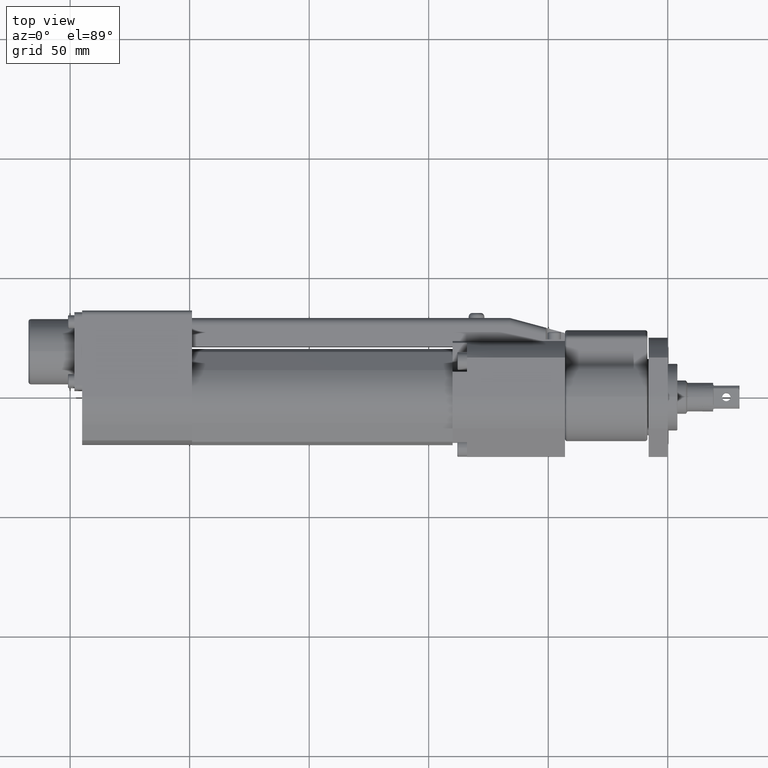
[diagram: clean part render]
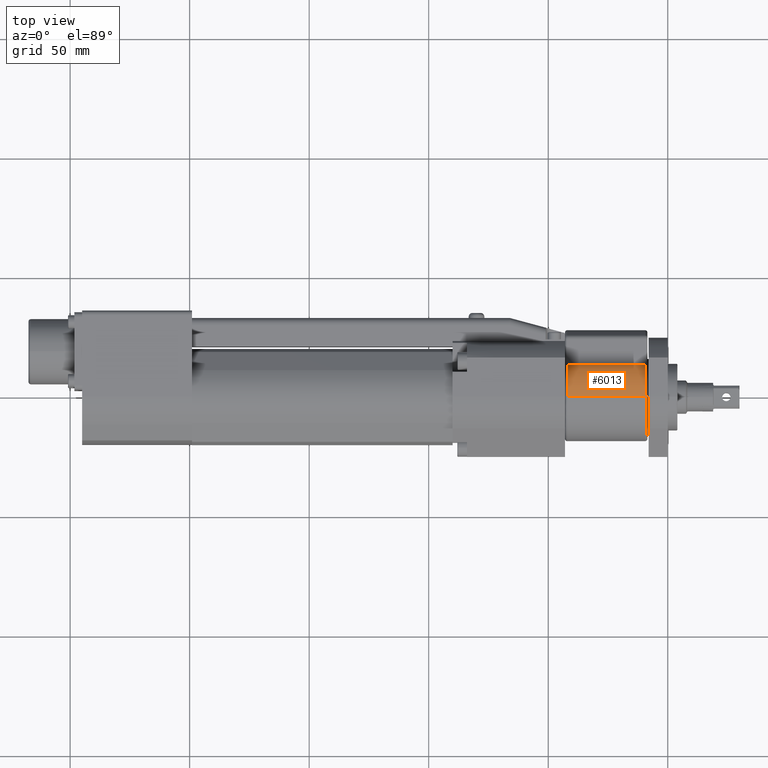
[diagram: same view with one face highlighted and labeled with its STEP entity id]
A machine part, top view. The second image highlights one B-rep face of the part: STEP entity #6013.
In plain terms, the highlighted cylindrical surface (partial cylindrical patch) has radius 18.5 mm, axis along (1, -0, -0).
Its self-contained STEP definition (entity closure, byte-faithful):
#133 = VECTOR ( 'NONE', #4785, 1000.000000000000000 ) ;
#377 = VERTEX_POINT ( 'NONE', #5498 ) ;
#892 = DIRECTION ( 'NONE',  ( -1.000000000000000000, 0.0000000000000000000, 0.0000000000000000000 ) ) ;
#1036 = ORIENTED_EDGE ( 'NONE', *, *, #4548, .T. ) ;
#1091 = VERTEX_POINT ( 'NONE', #7677 ) ;
#1194 = EDGE_CURVE ( 'NONE', #1091, #4478, #2204, .T. ) ;
#1210 = CARTESIAN_POINT ( 'NONE',  ( -42.00000000000000000, 0.0000000000000000000, 0.0000000000000000000 ) ) ;
#1607 = CARTESIAN_POINT ( 'NONE',  ( -43.00000000000000000, 13.25572037069669700, 12.90487804878048900 ) ) ;
#1975 = DIRECTION ( 'NONE',  ( 0.0000000000000000000, 0.0000000000000000000, 1.000000000000000000 ) ) ;
#2204 = LINE ( 'NONE', #1607, #6170 ) ;
#2708 = VERTEX_POINT ( 'NONE', #3335 ) ;
#2733 = CARTESIAN_POINT ( 'NONE',  ( -43.00000000000000000, 0.0000000000000000000, 0.0000000000000000000 ) ) ;
#2840 = CIRCLE ( 'NONE', #4100, 18.49999999999999600 ) ;
#3101 = DIRECTION ( 'NONE',  ( -1.000000000000000000, 0.0000000000000000000, 0.0000000000000000000 ) ) ;
#3334 = CARTESIAN_POINT ( 'NONE',  ( -42.00000000000000000, 13.25572037069669700, 12.90487804878048900 ) ) ;
#3335 = CARTESIAN_POINT ( 'NONE',  ( -9.500000000000001800, 2.265596578422603000E-015, 18.49999999999999600 ) ) ;
#3467 = DIRECTION ( 'NONE',  ( 0.0000000000000000000, 0.0000000000000000000, -1.000000000000000000 ) ) ;
#4100 = AXIS2_PLACEMENT_3D ( 'NONE', #5370, #892, #6141 ) ;
#4310 = EDGE_CURVE ( 'NONE', #2708, #1091, #2840, .T. ) ;
#4339 = CYLINDRICAL_SURFACE ( 'NONE', #7869, 18.49999999999999600 ) ;
#4407 = AXIS2_PLACEMENT_3D ( 'NONE', #1210, #6436, #1975 ) ;
#4429 = EDGE_CURVE ( 'NONE', #377, #2708, #8077, .T. ) ;
#4478 = VERTEX_POINT ( 'NONE', #3334 ) ;
#4548 = EDGE_CURVE ( 'NONE', #4478, #377, #6923, .T. ) ;
#4567 = FACE_OUTER_BOUND ( 'NONE', #7809, .T. ) ;
#4785 = DIRECTION ( 'NONE',  ( 1.000000000000000000, -0.0000000000000000000, -0.0000000000000000000 ) ) ;
#5091 = ORIENTED_EDGE ( 'NONE', *, *, #4310, .T. ) ;
#5370 = CARTESIAN_POINT ( 'NONE',  ( -9.500000000000001800, 0.0000000000000000000, 0.0000000000000000000 ) ) ;
#5498 = CARTESIAN_POINT ( 'NONE',  ( -42.00000000000000000, 2.265596578422603000E-015, 18.49999999999999600 ) ) ;
#5505 = CARTESIAN_POINT ( 'NONE',  ( -43.00000000000000000, 2.265596578422603000E-015, 18.49999999999999600 ) ) ;
#6013 = ADVANCED_FACE ( 'NONE', ( #4567 ), #4339, .T. ) ;
#6106 = ORIENTED_EDGE ( 'NONE', *, *, #4429, .T. ) ;
#6141 = DIRECTION ( 'NONE',  ( 0.0000000000000000000, 0.0000000000000000000, 1.000000000000000000 ) ) ;
#6170 = VECTOR ( 'NONE', #3101, 1000.000000000000000 ) ;
#6436 = DIRECTION ( 'NONE',  ( 1.000000000000000000, -0.0000000000000000000, -0.0000000000000000000 ) ) ;
#6923 = CIRCLE ( 'NONE', #4407, 18.49999999999999600 ) ;
#7677 = CARTESIAN_POINT ( 'NONE',  ( -9.500000000000001800, 13.25572037069669700, 12.90487804878048900 ) ) ;
#7809 = EDGE_LOOP ( 'NONE', ( #1036, #6106, #5091, #9368 ) ) ;
#7869 = AXIS2_PLACEMENT_3D ( 'NONE', #2733, #7937, #3467 ) ;
#7937 = DIRECTION ( 'NONE',  ( 1.000000000000000000, -0.0000000000000000000, -0.0000000000000000000 ) ) ;
#8077 = LINE ( 'NONE', #5505, #133 ) ;
#9368 = ORIENTED_EDGE ( 'NONE', *, *, #1194, .T. ) ;